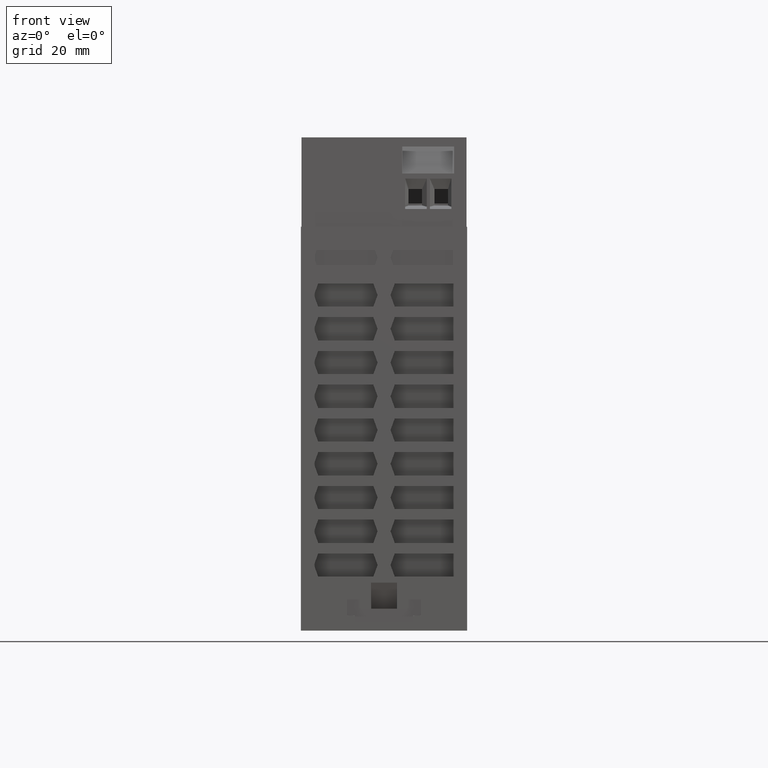
[diagram: clean part render]
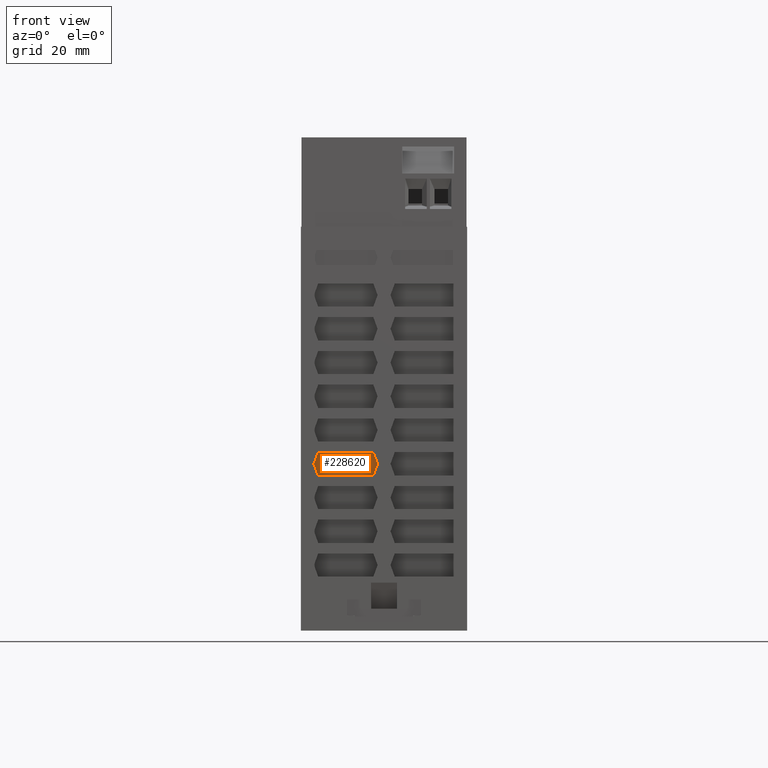
[diagram: same view with one face highlighted and labeled with its STEP entity id]
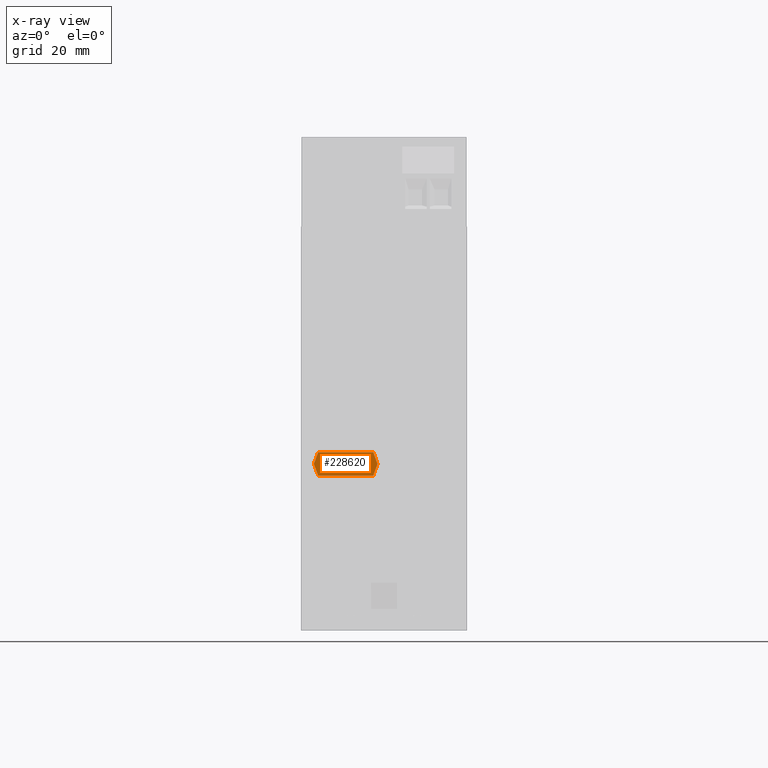
[diagram: x-ray of the same camera — body ghosted, the highlighted face saturated]
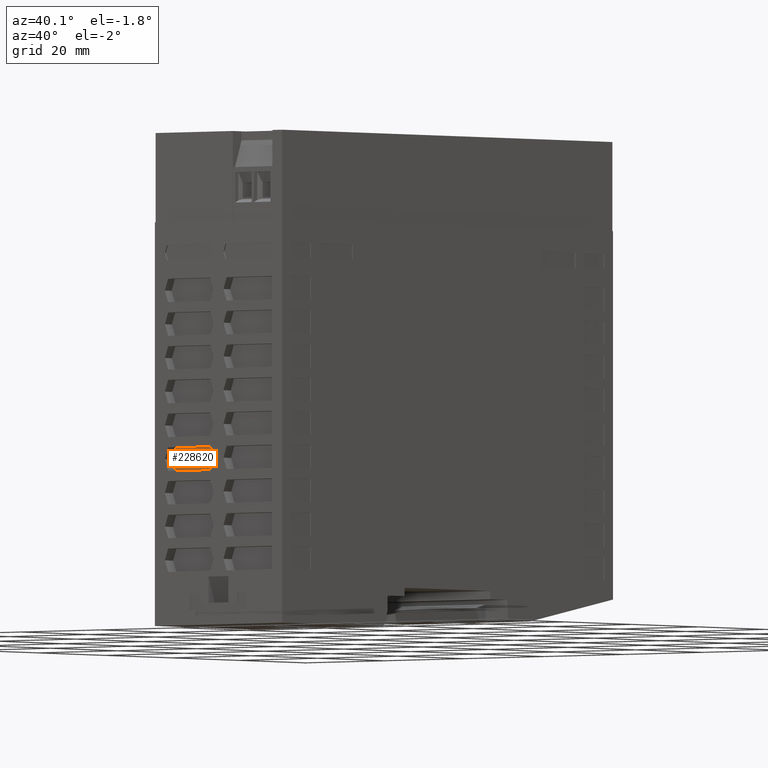
[diagram: same view with one face highlighted and labeled with its STEP entity id]
A machine part, front view. The second image highlights one B-rep face of the part: STEP entity #228620.
The next image is the same camera in x-ray: the body ghosted, the highlighted face saturated — about 0% of this face is hidden behind the body in this view.
A second angle (auxiliary view) of the same face is appended — the face is thin or edge-on in the first view.
In plain terms, the highlighted planar face has unit normal (-0, 1, 0.0087).
Its self-contained STEP definition (entity closure, byte-faithful):
#185370=CARTESIAN_POINT('',(16.83487880955,71.8,-47.5904133168945));
#185380=DIRECTION('',(-0.,0.00872653549837375,0.999961923064171));
#185390=DIRECTION('',(1.,0.,0.));
#185400=AXIS2_PLACEMENT_3D('',#185370,#185380,#185390);
#185410=PLANE('',#185400);
#228120=CARTESIAN_POINT('',(-15.3834397059671,71.8,-47.5904133168945));
#228130=DIRECTION('',(0.342008643580674,-0.939661025496111,
0.0082002975376332));
#228140=VECTOR('',#228130,1.);
#228150=LINE('',#228120,#228140);
#228160=CARTESIAN_POINT('',(1.24999999999998,26.1,-47.1915954588569));
#228170=VERTEX_POINT('',#228160);
#228180=CARTESIAN_POINT('',(2.06893302709905,23.85,-47.1719600063277));
#228190=VERTEX_POINT('',#228180);
#228200=EDGE_CURVE('',#228170,#228190,#228150,.T.);
#228210=ORIENTED_EDGE('',*,*,#228200,.F.);
#228220=CARTESIAN_POINT('',(0.,23.85,-47.1719600063277));
#228230=DIRECTION('',(1.,1.38777878078145E-16,-1.21109619426998E-18));
#228240=VECTOR('',#228230,1.);
#228250=LINE('',#228220,#228240);
#228260=CARTESIAN_POINT('',(12.6810669729,23.85,-47.1719600063277));
#228270=VERTEX_POINT('',#228260);
#228280=EDGE_CURVE('',#228190,#228270,#228250,.T.);
#228290=ORIENTED_EDGE('',*,*,#228280,.F.);
#228300=CARTESIAN_POINT('',(30.1334397059662,71.8,-47.5904133168945));
#228310=DIRECTION('',(0.342008643580674,0.939661025496111,
-0.00820029753763323));
#228320=VECTOR('',#228310,1.);
#228330=LINE('',#228300,#228320);
#228340=CARTESIAN_POINT('',(13.4999999999995,26.1000000000013,
-47.1915954588569));
#228350=VERTEX_POINT('',#228340);
#228360=EDGE_CURVE('',#228270,#228350,#228330,.T.);
#228370=ORIENTED_EDGE('',*,*,#228360,.F.);
#228380=CARTESIAN_POINT('',(-3.13343970596713,71.8,-47.5904133168945));
#228390=DIRECTION('',(-0.342008643580674,0.939661025496111,
-0.0082002975376332));
#228400=VECTOR('',#228390,1.);
#228410=LINE('',#228380,#228400);
#228420=CARTESIAN_POINT('',(12.6810669729009,28.3500000000003,
-47.2112309113861));
#228430=VERTEX_POINT('',#228420);
#228440=EDGE_CURVE('',#228350,#228430,#228410,.T.);
#228450=ORIENTED_EDGE('',*,*,#228440,.F.);
#228460=CARTESIAN_POINT('',(0.,28.3500000000003,-47.2112309113861));
#228470=DIRECTION('',(-1.,-1.38777878078145E-16,1.21109619426998E-18));
#228480=VECTOR('',#228470,1.);
#228490=LINE('',#228460,#228480);
#228500=CARTESIAN_POINT('',(2.06893302709912,28.3500000000003,
-47.2112309113861));
#228510=VERTEX_POINT('',#228500);
#228520=EDGE_CURVE('',#228430,#228510,#228490,.T.);
#228530=ORIENTED_EDGE('',*,*,#228520,.F.);
#228540=CARTESIAN_POINT('',(17.8834397059671,71.8,-47.5904133168945));
#228550=DIRECTION('',(-0.342008643580674,-0.939661025496111,
0.00820029753763323));
#228560=VECTOR('',#228550,1.);
#228570=LINE('',#228540,#228560);
#228580=EDGE_CURVE('',#228510,#228170,#228570,.T.);
#228590=ORIENTED_EDGE('',*,*,#228580,.F.);
#228600=EDGE_LOOP('',(#228590,#228530,#228450,#228370,#228290,#228210));
#228610=FACE_OUTER_BOUND('',#228600,.T.);
#228620=ADVANCED_FACE('',(#228610),#185410,.F.);